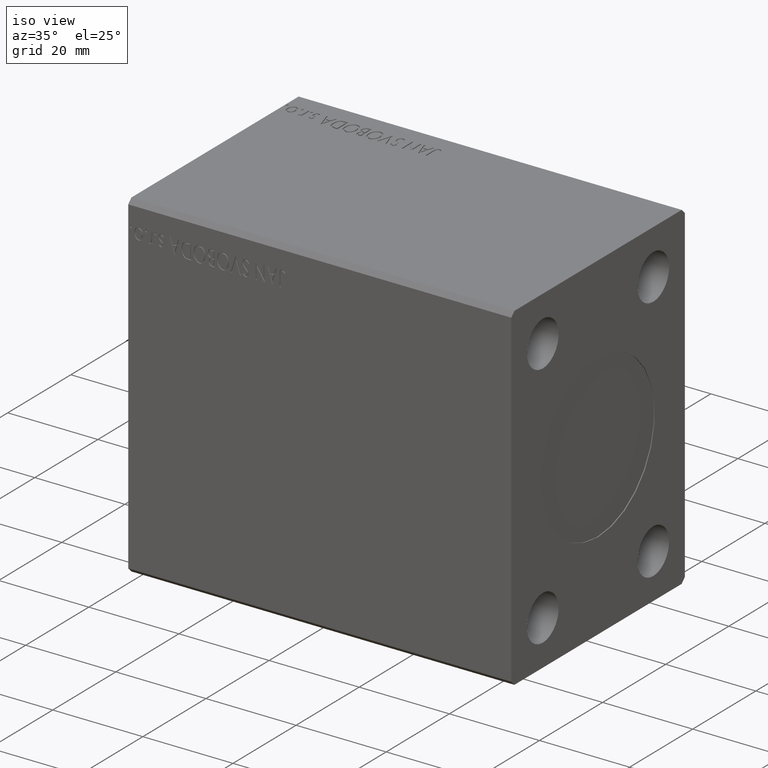
[diagram: clean part render]
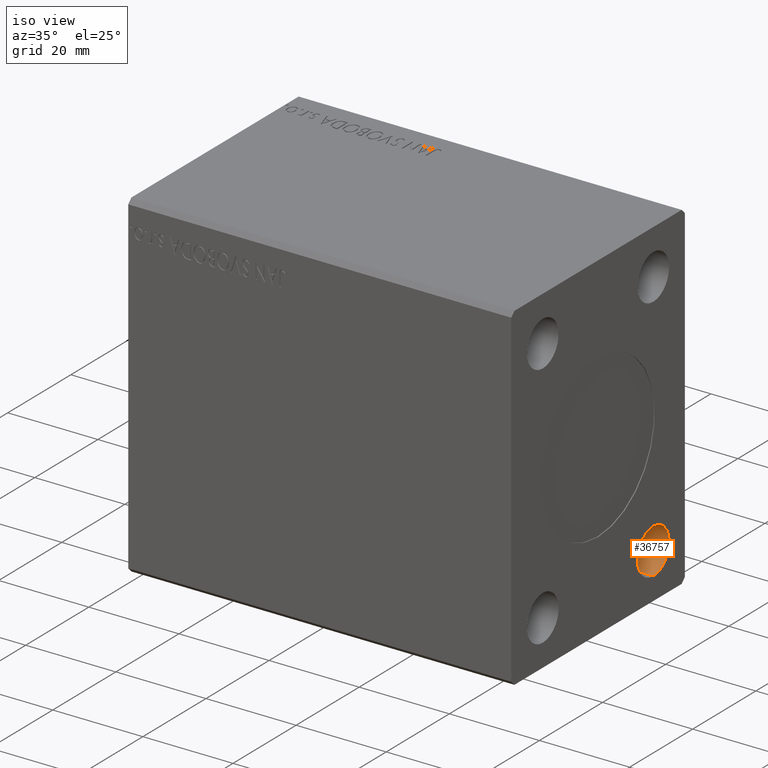
[diagram: same view with one face highlighted and labeled with its STEP entity id]
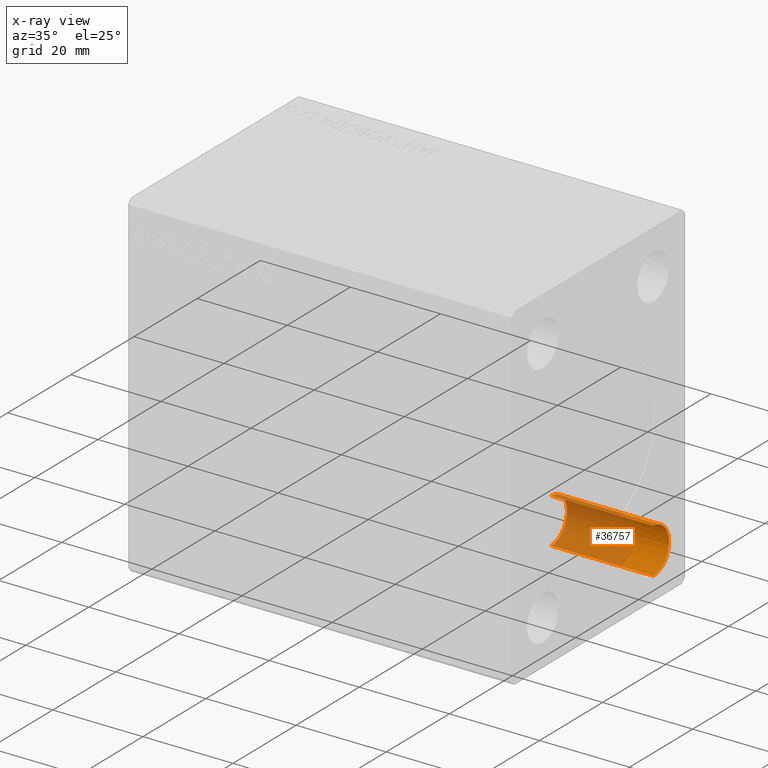
[diagram: x-ray of the same camera — body ghosted, the highlighted face saturated]
A machine part, iso view. The second image highlights one B-rep face of the part: STEP entity #36757.
The next image is the same camera in x-ray: the body ghosted, the highlighted face saturated — about 67% of this face is hidden behind the body in this view.
In plain terms, the highlighted cylindrical surface (edge-blend (fillet) strip) has radius 5 mm, axis along (1, 0, 0).
Its self-contained STEP definition (entity closure, byte-faithful):
#260 = LINE ( 'NONE', #14512, #18586 ) ;
#1230 = CYLINDRICAL_SURFACE ( 'NONE', #26345, 4.999999999999993783 ) ;
#3708 = EDGE_CURVE ( 'NONE', #21167, #36524, #40073, .T. ) ;
#4472 = AXIS2_PLACEMENT_3D ( 'NONE', #43001, #4850, #36092 ) ;
#4602 = CARTESIAN_POINT ( 'NONE',  ( 85.00000000000000000, 17.50000000000000000, -32.49999999999998579 ) ) ;
#4850 = DIRECTION ( 'NONE',  ( 1.000000000000000000, -0.000000000000000000, -0.000000000000000000 ) ) ;
#6108 = VERTEX_POINT ( 'NONE', #38199 ) ;
#11478 = DIRECTION ( 'NONE',  ( 0.000000000000000000, 0.000000000000000000, -1.000000000000000000 ) ) ;
#11600 = ORIENTED_EDGE ( 'NONE', *, *, #3708, .T. ) ;
#11717 = LINE ( 'NONE', #4602, #27027 ) ;
#14512 = CARTESIAN_POINT ( 'NONE',  ( 85.00000000000000000, 17.50000000000000000, -22.50000000000000000 ) ) ;
#14830 = CARTESIAN_POINT ( 'NONE',  ( 85.00000000000000000, 17.50000000000000000, -27.49999999999999289 ) ) ;
#14872 = EDGE_CURVE ( 'NONE', #6108, #36524, #260, .T. ) ;
#17005 = ORIENTED_EDGE ( 'NONE', *, *, #14872, .F. ) ;
#18586 = VECTOR ( 'NONE', #41105, 1000.000000000000000 ) ;
#20814 = AXIS2_PLACEMENT_3D ( 'NONE', #35866, #42339, #39198 ) ;
#21167 = VERTEX_POINT ( 'NONE', #42584 ) ;
#23968 = ORIENTED_EDGE ( 'NONE', *, *, #35865, .T. ) ;
#26345 = AXIS2_PLACEMENT_3D ( 'NONE', #14830, #28447, #11478 ) ;
#26592 = CARTESIAN_POINT ( 'NONE',  ( 85.00000000000000000, 17.50000000000000000, -22.49999999999999645 ) ) ;
#27027 = VECTOR ( 'NONE', #42099, 1000.000000000000000 ) ;
#28447 = DIRECTION ( 'NONE',  ( 1.000000000000000000, -0.000000000000000000, -0.000000000000000000 ) ) ;
#29383 = CIRCLE ( 'NONE', #20814, 4.999999999999993783 ) ;
#31847 = ORIENTED_EDGE ( 'NONE', *, *, #43603, .F. ) ;
#34093 = CARTESIAN_POINT ( 'NONE',  ( 62.33000000000000540, 17.50000000000000000, -32.49999999999998579 ) ) ;
#35865 = EDGE_CURVE ( 'NONE', #42545, #21167, #11717, .T. ) ;
#35866 = CARTESIAN_POINT ( 'NONE',  ( 62.33000000000000540, 17.50000000000000000, -27.49999999999999289 ) ) ;
#36092 = DIRECTION ( 'NONE',  ( 0.000000000000000000, 0.000000000000000000, -1.000000000000000000 ) ) ;
#36524 = VERTEX_POINT ( 'NONE', #26592 ) ;
#36757 = ADVANCED_FACE ( 'NONE', ( #38300 ), #1230, .F. ) ;
#38199 = CARTESIAN_POINT ( 'NONE',  ( 62.33000000000000540, 17.50000000000000000, -22.50000000000000000 ) ) ;
#38300 = FACE_OUTER_BOUND ( 'NONE', #42721, .T. ) ;
#39198 = DIRECTION ( 'NONE',  ( 0.000000000000000000, 0.000000000000000000, -1.000000000000000000 ) ) ;
#40073 = CIRCLE ( 'NONE', #4472, 4.999999999999993783 ) ;
#41105 = DIRECTION ( 'NONE',  ( 1.000000000000000000, -0.000000000000000000, -0.000000000000000000 ) ) ;
#42099 = DIRECTION ( 'NONE',  ( 1.000000000000000000, -0.000000000000000000, -0.000000000000000000 ) ) ;
#42339 = DIRECTION ( 'NONE',  ( 1.000000000000000000, -0.000000000000000000, -0.000000000000000000 ) ) ;
#42545 = VERTEX_POINT ( 'NONE', #34093 ) ;
#42584 = CARTESIAN_POINT ( 'NONE',  ( 85.00000000000000000, 17.50000000000000000, -32.49999999999998579 ) ) ;
#42721 = EDGE_LOOP ( 'NONE', ( #17005, #31847, #23968, #11600 ) ) ;
#43001 = CARTESIAN_POINT ( 'NONE',  ( 85.00000000000000000, 17.50000000000000000, -27.49999999999999289 ) ) ;
#43603 = EDGE_CURVE ( 'NONE', #42545, #6108, #29383, .T. ) ;